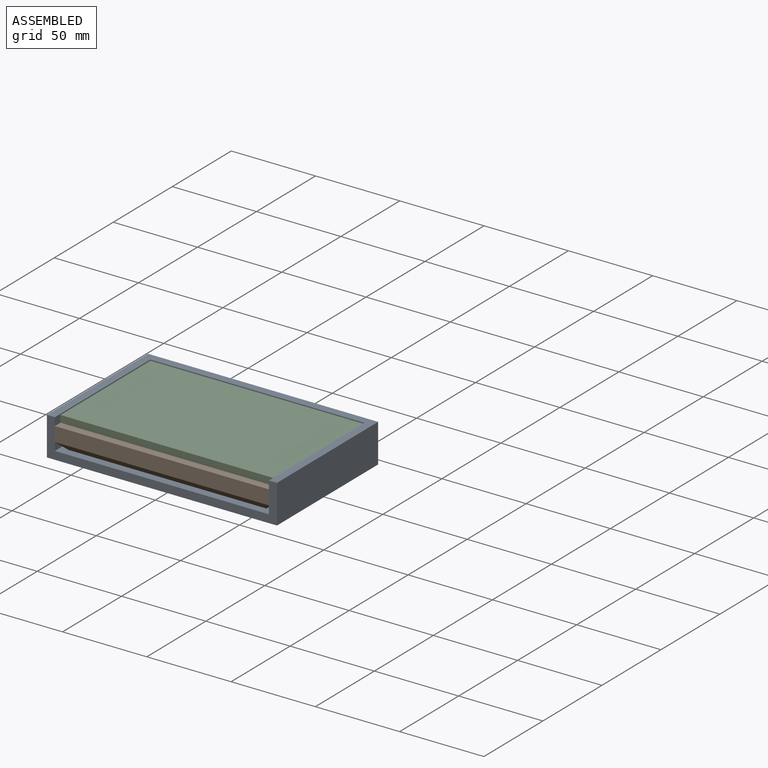
[diagram: assembled view]
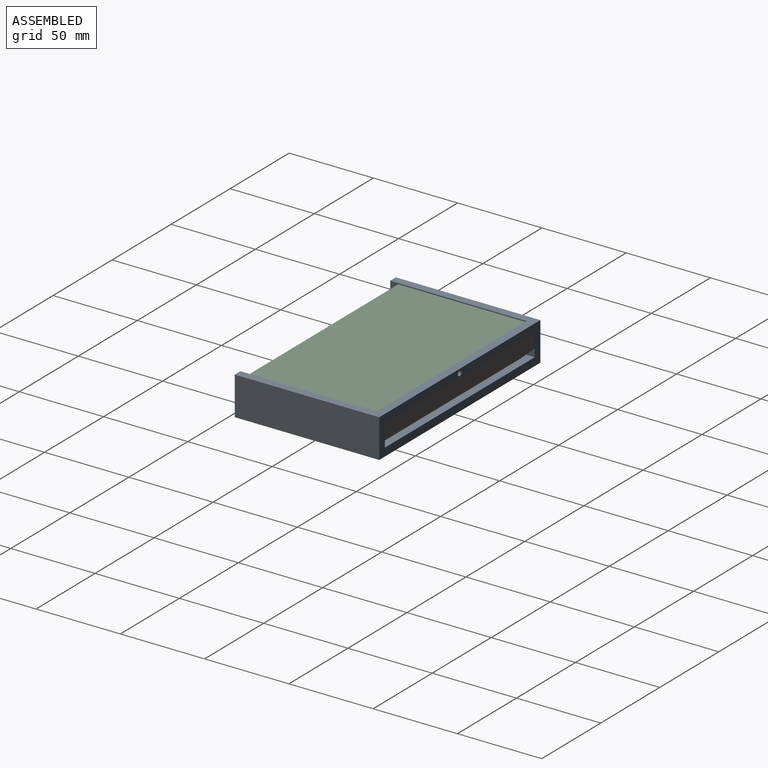
[diagram: assembled view, second angle]
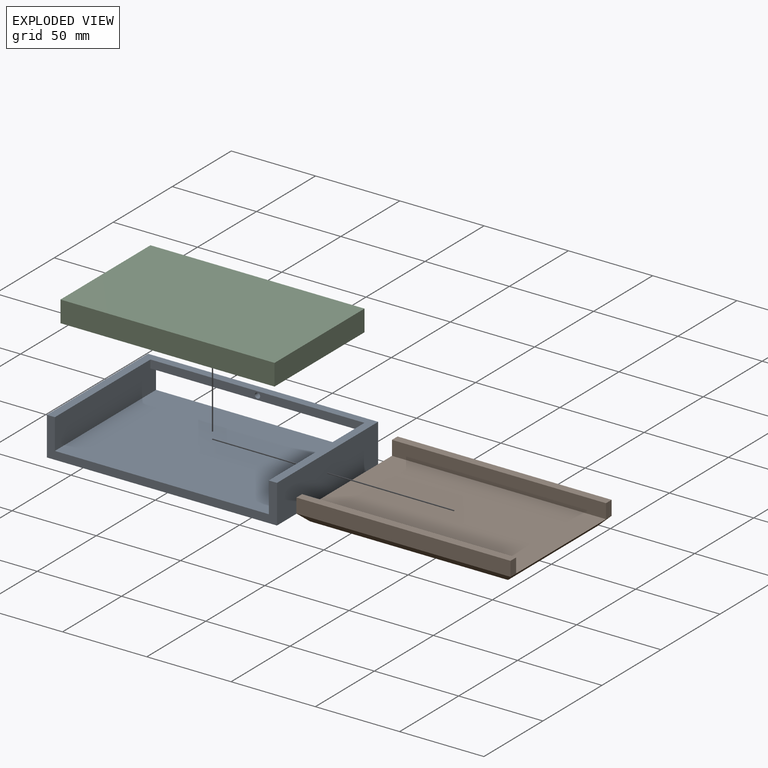
[diagram: exploded view]
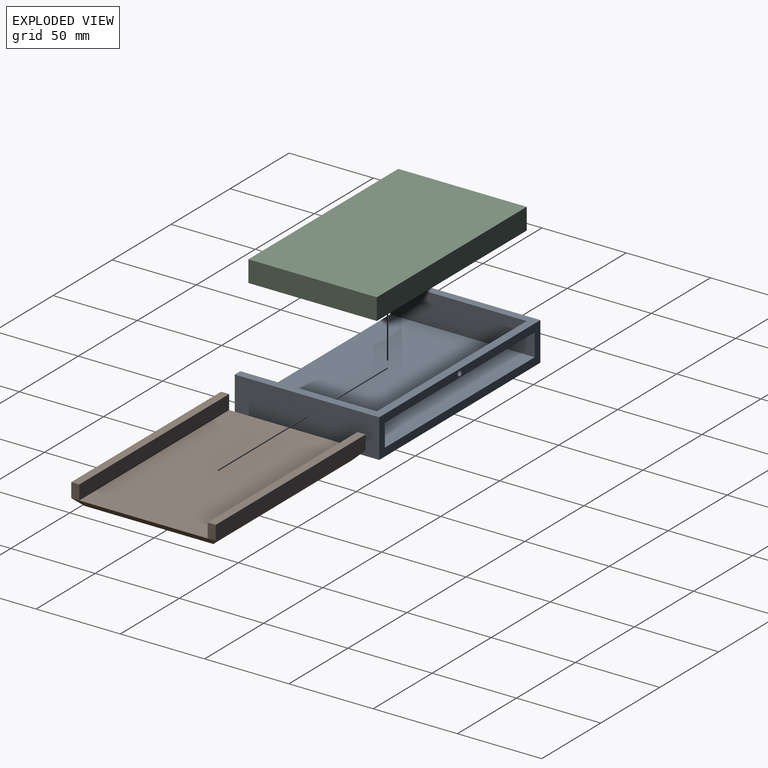
[diagram: exploded view, second angle]
ASSEMBLY  parts=3 mates=3
PART A: 12 faces, bbox 136.5x85.7x22.9 mm
  f0: plane 127x85.73mm, normal (0,0,1), area 10887.1mm2, adj f2,f4,f7,f9
  f1: plane 127x4.76mm, normal (0,-1,0), area 596.9mm2, adj f7,f8,f9,f10,f11
  f2: plane 136.53x22.86mm, normal (0,-1,0), area 822.6mm2, adj f0,f3,f5,f6,f7,f8,f9
  f3: plane 85.73x22.86mm, normal (1,0,0), area 1959.7mm2, adj f2,f4,f6,f8
  f4: plane 136.53x22.86mm, normal (0,1,0), area 1419.5mm2, adj f0,f3,f5,f6,f7,f8,f9,f10
  f5: plane 85.73x22.86mm, normal (-1,0,0), area 1959.7mm2, adj f2,f4,f6,f8
  f6: plane 136.53x85.73mm, normal (0,0,-1), area 11703.6mm2, adj f2,f3,f4,f5
  f7: plane 85.73x18.1mm, normal (1,0,0), area 1528.7mm2, adj f0,f1,f2,f4,f8,f10
  f8: plane 136.53x85.73mm, normal (0,0,1), area 1421.4mm2, adj f1,f2,f3,f4,f5,f7,f9
  f9: plane 85.73x18.1mm, normal (-1,0,0), area 1528.7mm2, adj f0,f1,f2,f4,f8,f10
  f10: plane 127x4.76mm, normal (0,0,-1), area 604.8mm2, adj f1,f4,f7,f9
  f11: cylinder r=1.59mm len=4.76mm, axis (0,-1,0), area 47.5mm2, adj f1,f4
PART B: 16 faces, bbox 127x85.7x13.3 mm
  f0: plane 8.57x4.76mm, normal (-1,0,0), area 40.8mm2, adj f5,f10,f11,f12
  f1: plane 8.57x4.76mm, normal (1,0,0), area 40.8mm2, adj f3,f8,f9,f15
  f2: plane 127x76.2mm, normal (0,0,1), area 9677.4mm2, adj f8,f10,f12,f15
  f3: plane 127x8.57mm, normal (0,-1,0), area 1088.7mm2, adj f1,f6,f9,f13
  f4: plane 8.57x4.76mm, normal (1,0,0), area 40.8mm2, adj f5,f10,f11,f15
  f5: plane 127x8.57mm, normal (0,1,0), area 1088.7mm2, adj f0,f4,f11,f14
  f6: plane 8.57x4.76mm, normal (-1,0,0), area 40.8mm2, adj f3,f8,f9,f12
  f7: plane 117.48x76.2mm, normal (0,0,-1), area 8951.6mm2, adj f12,f13,f14,f15
  f8: plane 127x8.57mm, normal (0,1,0), area 1088.7mm2, adj f1,f2,f6,f9
  f9: plane 127x4.76mm, normal (0,0,1), area 604.8mm2, adj f1,f3,f6,f8
  f10: plane 127x8.57mm, normal (0,-1,0), area 1088.7mm2, adj f0,f2,f4,f11
  f11: plane 127x4.76mm, normal (0,0,1), area 604.8mm2, adj f0,f4,f5,f10
  f12: plane 85.73x4.76mm, normal (-0.71,0,-0.71), area 545.3mm2, adj f0,f2,f6,f7,f13,f14
  f13: plane 127x4.76mm, normal (0,-0.71,-0.71), area 823.3mm2, adj f3,f7,f12,f15
  f14: plane 127x4.76mm, normal (0,0.71,-0.71), area 823.3mm2, adj f5,f7,f12,f15
  f15: plane 85.73x4.76mm, normal (0.71,0,-0.71), area 545.3mm2, adj f1,f2,f4,f7,f13,f14
PART C: 6 faces, bbox 127x76.2x12.7 mm
  f0: plane 127x12.7mm, normal (0,-1,0), area 1612.9mm2, adj f1,f3,f4,f5
  f1: plane 76.2x12.7mm, normal (1,0,0), area 967.7mm2, adj f0,f2,f4,f5
  f2: plane 127x12.7mm, normal (0,1,0), area 1612.9mm2, adj f1,f3,f4,f5
  f3: plane 76.2x12.7mm, normal (-1,0,0), area 967.7mm2, adj f0,f2,f4,f5
  f4: plane 127x76.2mm, normal (0,0,1), area 9677.4mm2, adj f0,f1,f2,f3
  f5: plane 127x76.2mm, normal (0,0,-1), area 9677.4mm2, adj f0,f1,f2,f3
PLACE A t=(0,-1.52,0)mm
PLACE B t=(0,-1.52,4.76)mm
PLACE C t=(0,-1.52,9.52)mm
MATE parallel B.f5 <-> A.f11  axis (0,1,0) through (0,41.34,13.81)mm
MATE parallel C.f5 <-> B.f2  axis (0,0,-1) through (0,-1.52,9.52)mm
MATE planar B.f7 <-> A.f0  axis (0,0,-1) through (0,-1.52,4.76)mm
